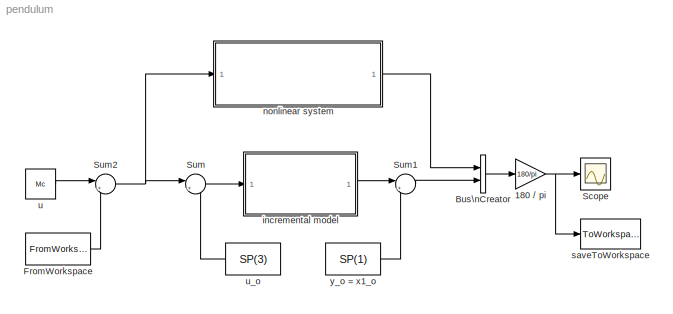
MODEL pendulum
KIND model
BLOCK [Gain] 180 // pi
  Gain = 180/pi
  OutDataType = fixdt(1, 16)
  OutDataTypeMode = Inherit via internal rule
  OutDataTypeStr = Inherit: Inherit via internal rule
  OutScaling = 2^0
  ParamDataTypeStr = Inherit: Inherit via internal rule
  ParameterDataType = fixdt(1, 16)
  ParameterDataTypeMode = Inherit via internal rule
  ParameterScaling = 2^0
  SID = 18
  SaturateOnIntegerOverflow = off
BLOCK [BusCreator] Bus\nCreator
  DisplayOption = bar
  Inputs = 2
  Ports = [2, 1]
  SID = 17
BLOCK [FromWorkspace] FromWorkspace
  SID = 84
  SampleTime = 0
  VariableName = momentum
  ZeroCross = on
BLOCK [Scope] Scope
  DataFormat = StructureWithTime
  Floating = off
  NumInputPorts = 1
  Ports = [1]
  SID = 1
  SampleTime = 0
  TimeRange = 5
  ZoomMode = yonly
BLOCK [Sum] Sum
  IconShape = round
  InputSameDT = off
  Inputs = |+-
  OutDataType = fixdt(1, 16)
  OutDataTypeMode = Inherit via internal rule
  OutDataTypeStr = Inherit: Inherit via internal rule
  OutScaling = 2^0
  Ports = [2, 1]
  SID = 60
  SaturateOnIntegerOverflow = off
BLOCK [Sum] Sum1
  IconShape = round
  InputSameDT = off
  Inputs = |++
  OutDataType = fixdt(1, 16)
  OutDataTypeMode = Inherit via internal rule
  OutDataTypeStr = Inherit: Inherit via internal rule
  OutScaling = 2^0
  Ports = [2, 1]
  SID = 61
  SaturateOnIntegerOverflow = off
BLOCK [Sum] Sum2
  IconShape = round
  InputSameDT = off
  Inputs = |++
  OutDataType = fixdt(1, 16)
  OutDataTypeMode = Inherit via internal rule
  OutDataTypeStr = Inherit: Inherit via internal rule
  OutScaling = 2^0
  Ports = [2, 1]
  SID = 85
  SaturateOnIntegerOverflow = off
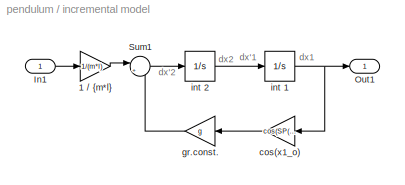
BLOCK [SubSystem] incremental model
  FunctionWithSeparateData = off
  MaskHideContents = off
  MinAlgLoopOccurrences = off
  Opaque = off
  Ports = [1, 1]
  PropExecContextOutsideSubsystem = off
  RTWSystemCode = Auto
  RequestExecContextInheritance = off
  SID = 57
BLOCK [Gain] incremental model/1 // {m*l}
  Gain = 1/(m*l)
  OutDataType = fixdt(1, 16)
  OutDataTypeMode = Inherit via internal rule
  OutDataTypeStr = Inherit: Inherit via internal rule
  OutScaling = 2^0
  ParamDataTypeStr = Inherit: Inherit via internal rule
  ParameterDataType = fixdt(1, 16)
  ParameterDataTypeMode = Inherit via internal rule
  ParameterScaling = 2^0
  SID = 46
  SaturateOnIntegerOverflow = off
BLOCK [Inport] incremental model/In1
  IconDisplay = Port number
  SID = 58
BLOCK [Outport] incremental model/Out1
  IconDisplay = Port number
  SID = 59
BLOCK [Sum] incremental model/Sum1
  IconShape = round
  InputSameDT = off
  Inputs = |+-
  OutDataType = fixdt(1, 16)
  OutDataTypeMode = Inherit via internal rule
  OutDataTypeStr = Inherit: Inherit via internal rule
  OutScaling = 2^0
  Ports = [2, 1]
  SID = 48
  SaturateOnIntegerOverflow = off
BLOCK [Gain] incremental model/cos(x1_o)
  Gain = cos(SP(1))
  OutDataType = fixdt(1, 16)
  OutDataTypeMode = Inherit via internal rule
  OutDataTypeStr = Inherit: Inherit via internal rule
  OutScaling = 2^0
  ParamDataTypeStr = Inherit: Inherit via internal rule
  ParameterDataType = fixdt(1, 16)
  ParameterDataTypeMode = Inherit via internal rule
  ParameterScaling = 2^0
  SID = 51
  SaturateOnIntegerOverflow = off
BLOCK [Gain] incremental model/gr.const.
  Gain = g
  OutDataType = fixdt(1, 16)
  OutDataTypeMode = Inherit via internal rule
  OutDataTypeStr = Inherit: Inherit via internal rule
  OutScaling = 2^0
  ParamDataTypeStr = Inherit: Inherit via internal rule
  ParameterDataType = fixdt(1, 16)
  ParameterDataTypeMode = Inherit via internal rule
  ParameterScaling = 2^0
  SID = 52
  SaturateOnIntegerOverflow = off
BLOCK [Integrator] incremental model/int 1
  InitialCondition = x0(1)-SP(1)
  Ports = [1, 1]
  SID = 53
BLOCK [Integrator] incremental model/int 2
  InitialCondition = x0(2)-SP(2)
  Ports = [1, 1]
  SID = 54
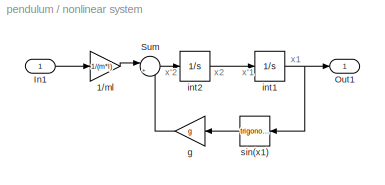
BLOCK [SubSystem] nonlinear system
  FunctionWithSeparateData = off
  MaskHideContents = off
  MinAlgLoopOccurrences = off
  Opaque = off
  Ports = [1, 1]
  PropExecContextOutsideSubsystem = off
  RTWSystemCode = Auto
  RequestExecContextInheritance = off
  SID = 39
BLOCK [Gain] nonlinear system/1//ml
  Gain = 1/(m*l)
  OutDataType = fixdt(1, 16)
  OutDataTypeMode = Inherit via internal rule
  OutDataTypeStr = Inherit: Inherit via internal rule
  OutScaling = 2^0
  ParamDataTypeStr = Inherit: Inherit via internal rule
  ParameterDataType = fixdt(1, 16)
  ParameterDataTypeMode = Inherit via internal rule
  ParameterScaling = 2^0
  SID = 9
  SaturateOnIntegerOverflow = off
BLOCK [Inport] nonlinear system/In1
  IconDisplay = Port number
  SID = 40
BLOCK [Outport] nonlinear system/Out1
  IconDisplay = Port number
  SID = 41
BLOCK [Sum] nonlinear system/Sum
  IconShape = round
  InputSameDT = off
  Inputs = |+-
  OutDataType = fixdt(1, 16)
  OutDataTypeMode = Inherit via internal rule
  OutDataTypeStr = Inherit: Inherit via internal rule
  OutScaling = 2^0
  Ports = [2, 1]
  SID = 7
  SaturateOnIntegerOverflow = off
BLOCK [Gain] nonlinear system/g
  Gain = g
  OutDataType = fixdt(1, 16)
  OutDataTypeMode = Inherit via internal rule
  OutDataTypeStr = Inherit: Inherit via internal rule
  OutScaling = 2^0
  ParamDataTypeStr = Inherit: Inherit via internal rule
  ParameterDataType = fixdt(1, 16)
  ParameterDataTypeMode = Inherit via internal rule
  ParameterScaling = 2^0
  SID = 5
  SaturateOnIntegerOverflow = off
BLOCK [Integrator] nonlinear system/int1
  InitialCondition = x0(1)
  Ports = [1, 1]
  SID = 3
BLOCK [Integrator] nonlinear system/int2
  InitialCondition = x0(2)
  Ports = [1, 1]
  SID = 2
BLOCK [Trigonometry] nonlinear system/sin(x1)
  Ports = [1, 1]
  SID = 6
BLOCK [ToWorkspace] saveToWorkspace
  MaxDataPoints = inf
  Ports = [1]
  SID = 83
  SampleTime = -1
  SaveFormat = Structure With Time
  VariableName = outputs
BLOCK [Constant] u
  OutDataType = fixdt(1, 16)
  OutScaling = 2^0
  SID = 8
  Value = Mc
BLOCK [Constant] u_o
  OutDataType = fixdt(1, 16)
  OutScaling = 2^0
  SID = 55
  Value = SP(3)
BLOCK [Constant] y_o = x1_o
  OutDataType = fixdt(1, 16)
  OutScaling = 2^0
  SID = 47
  Value = SP(1)
ANNOTATION incremental model: dx'1
ANNOTATION incremental model: dx'2
ANNOTATION incremental model: dx1
ANNOTATION incremental model: dx2
ANNOTATION nonlinear system: x'1
ANNOTATION nonlinear system: x'2
ANNOTATION nonlinear system: x1
ANNOTATION nonlinear system: x2
NET 180 // pi:1 -> Scope:1, saveToWorkspace:1
LINE Bus\nCreator:1 -> 180 // pi:1
LINE FromWorkspace:1 -> Sum2:2
LINE Sum1:1 -> Bus\nCreator:2
NET Sum2:1 -> Sum:1, nonlinear system:1
LINE Sum:1 -> incremental model:1
LINE incremental model/1 // {m*l}:1 -> incremental model/Sum1:1
LINE incremental model/In1:1 -> incremental model/1 // {m*l}:1
LINE incremental model/Sum1:1 -> incremental model/int 2:1
LINE incremental model/cos(x1_o):1 -> incremental model/gr.const.:1
LINE incremental model/gr.const.:1 -> incremental model/Sum1:2
NET incremental model/int 1:1 -> incremental model/Out1:1, incremental model/cos(x1_o):1
LINE incremental model/int 2:1 -> incremental model/int 1:1
LINE incremental model:1 -> Sum1:1
LINE nonlinear system/1//ml:1 -> nonlinear system/Sum:1
LINE nonlinear system/In1:1 -> nonlinear system/1//ml:1
LINE nonlinear system/Sum:1 -> nonlinear system/int2:1
LINE nonlinear system/g:1 -> nonlinear system/Sum:2
NET nonlinear system/int1:1 -> nonlinear system/Out1:1, nonlinear system/sin(x1):1
LINE nonlinear system/int2:1 -> nonlinear system/int1:1
LINE nonlinear system/sin(x1):1 -> nonlinear system/g:1
LINE nonlinear system:1 -> Bus\nCreator:1
LINE u:1 -> Sum2:1
LINE u_o:1 -> Sum:2
LINE y_o = x1_o:1 -> Sum1:2
note: NET lines group one-source signal fan-out (src -> all destinations, sorted); 1:1 wires keep LINE
